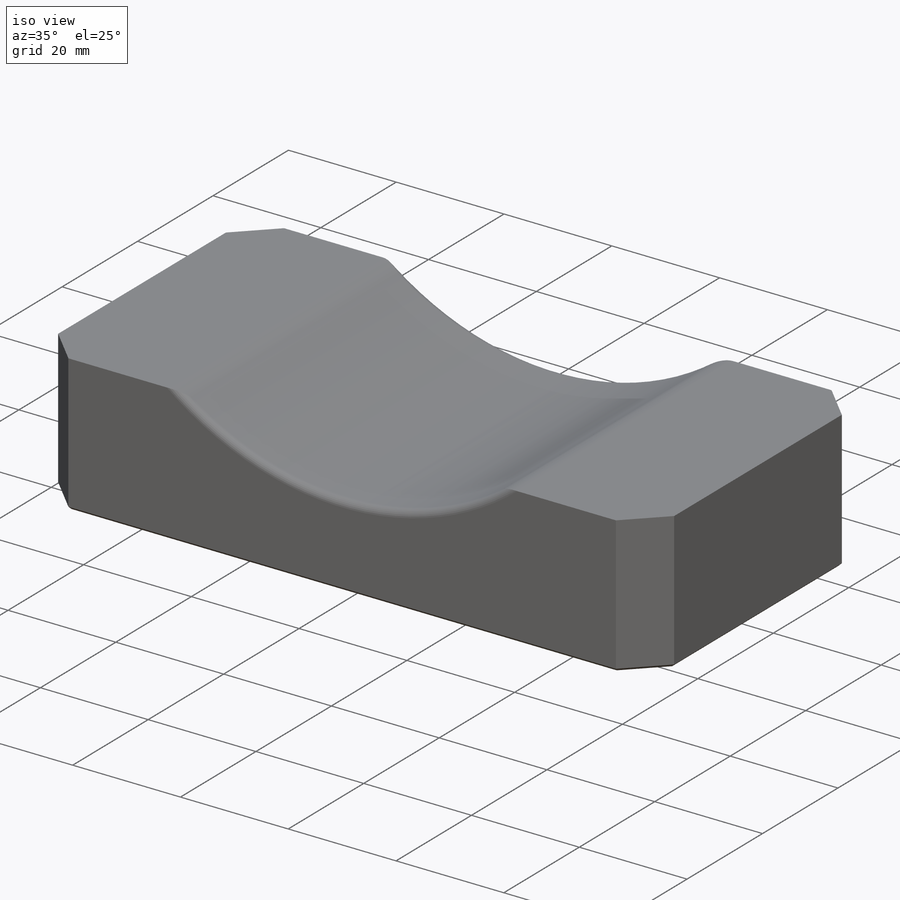
[diagram: iso view]
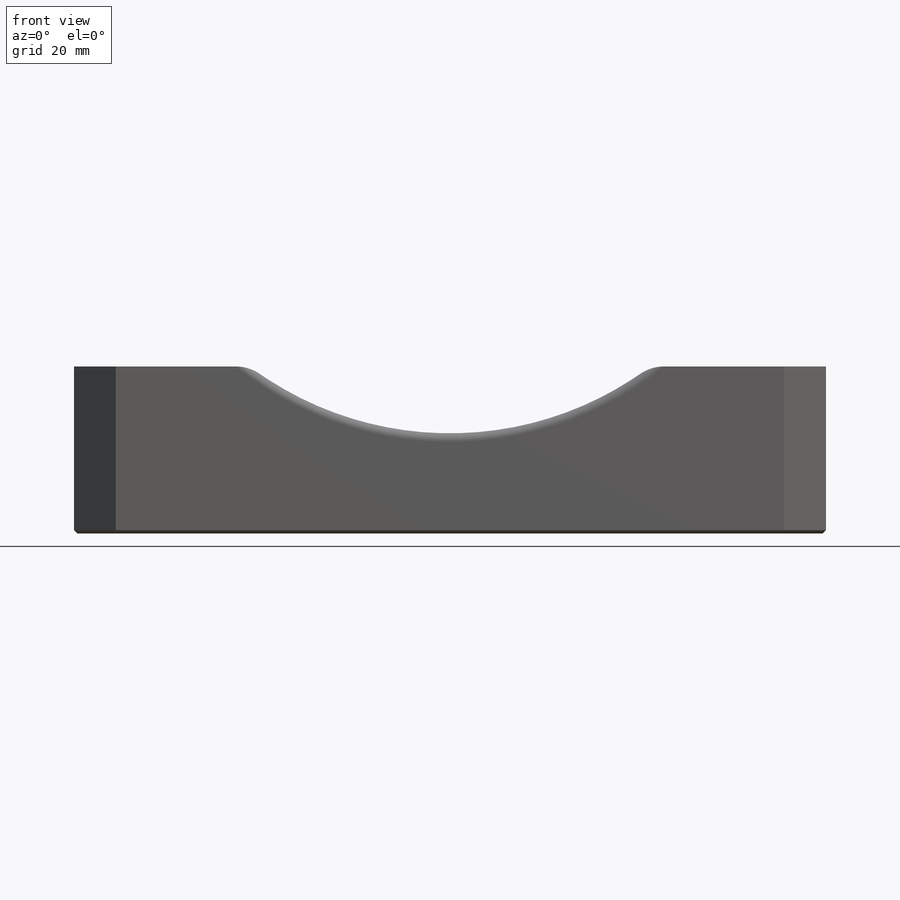
[diagram: front view]
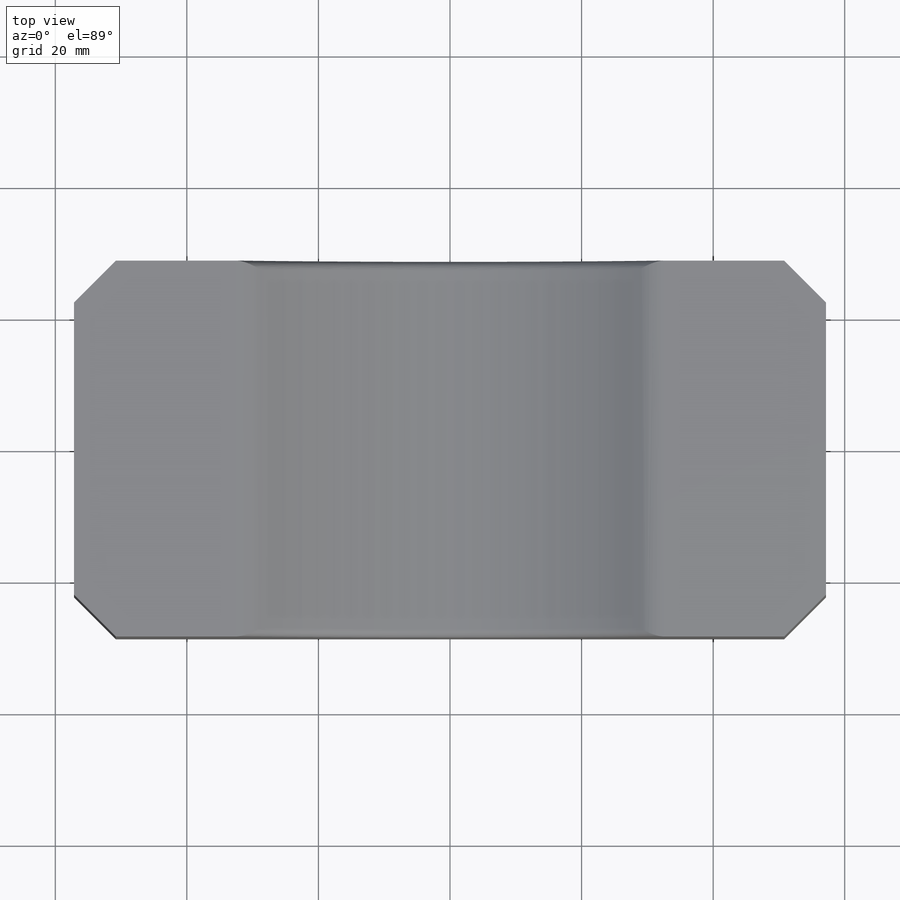
[diagram: top view]
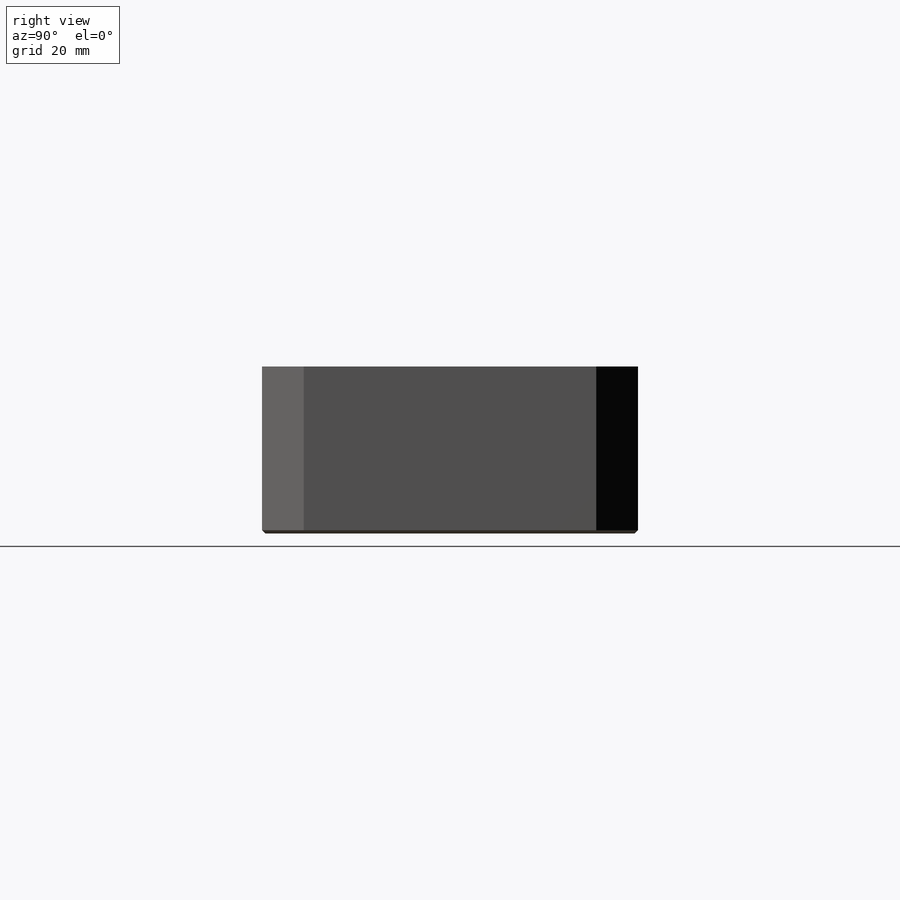
[diagram: right view]
SOLIDWORKS PART (.sldprt)
format: sldprt  version: not decoded by parser v0  size: 418,816 bytes
history: native  units: mm
features: sketch x4, cut_extrude x3, fillet x2, chamfer x2, material x1, extrude x1 + 1 further entry (+13 scaffold rows collapsed)
feature tree (27):
  scaffold x13  (default folders/planes/origin — collapsed)
  material  "6061-T6 AL"
  "Origin"  ID=-1
  sketch  "Sketch1"  dims[D1=25.4mm D2=114.3mm]
  extrude  "Extrude1"  Depth=57.15mm
  sketch  "Sketch7"  dims[D1=50.8mm D2=10.16mm]
  cut_extrude  "Cut-Extrude3"  [1 undecoded]
  fillet  "Fillet3"  Radius=6.35mm
  chamfer  "Chamfer3"  Distance=6.35mm Angle=45deg
  fillet  "Fillet4"  Radius=1.27mm
  chamfer  "Chamfer4"  Distance=0.508mm Angle=45deg
  sketch  "Sketch8"
  cut_extrude  "Extrude2"  [1 undecoded]
  sketch  "Sketch9"  dims[D1=31.75mm D2=31.75mm D3=31.75mm]
  cut_extrude  "Cut-Extrude4"  Depth=5.08mm
decode coverage: 9 of 12 modeling features carry decoded parameters; 1 rows unclassified (native names shown)
note: 2 parameter values undecoded
note: suppression state not decoded; provenance and decode notes live in map.json
